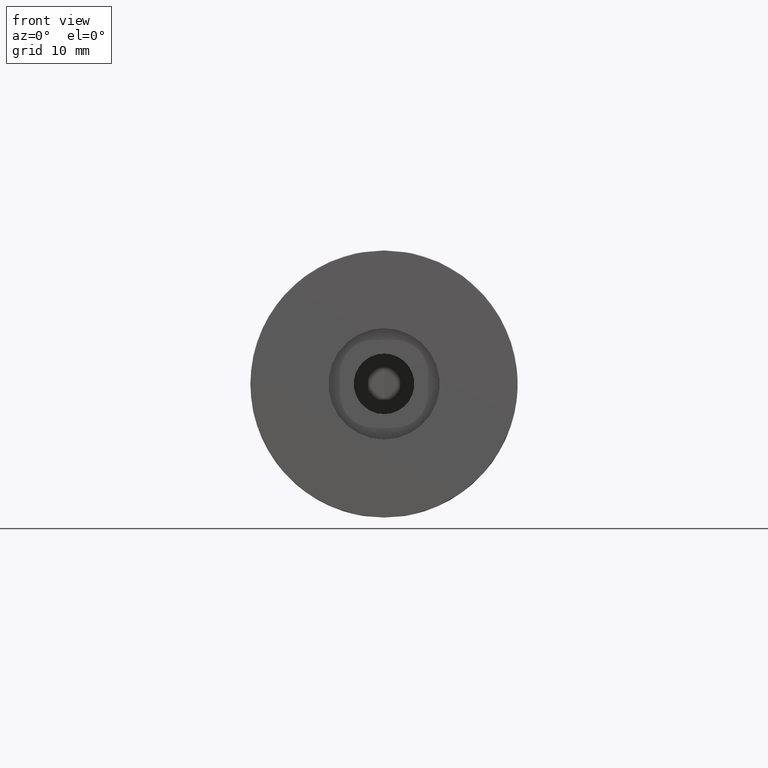
[diagram: clean part render]
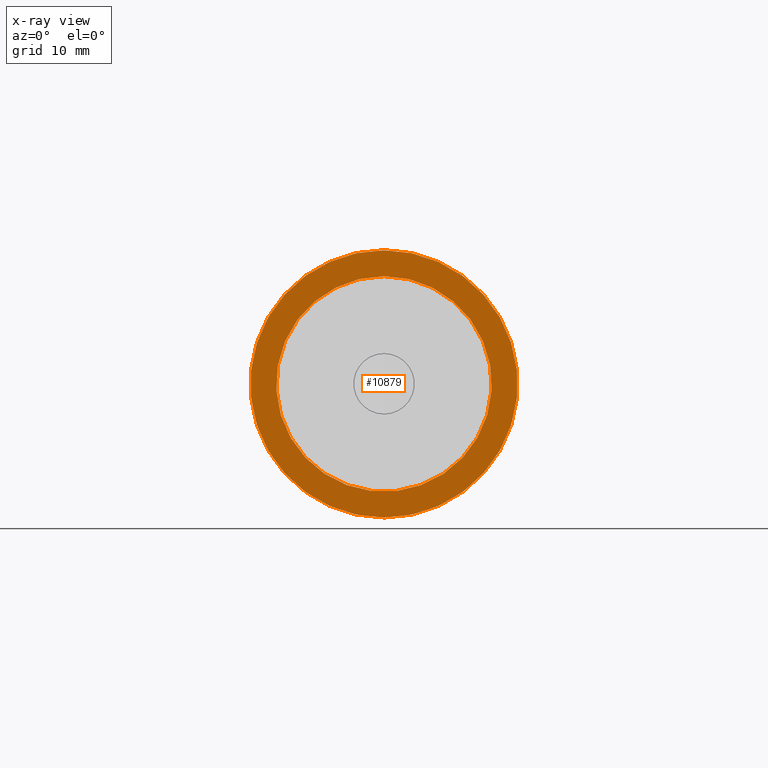
[diagram: x-ray — body ghosted, one internal face saturated and labeled with its STEP entity id]
A machine part, front view, then the same camera in x-ray: the body is ghosted and one INTERNAL B-rep face — a face not visible from any outside direction — is saturated and labeled: STEP entity #10879.
In plain terms, the highlighted planar face has unit normal (0, -1, 0).
Its self-contained STEP definition (entity closure, byte-faithful):
#1686 = CARTESIAN_POINT ( 'NONE',  ( 0.0000000000000000000, 12.69000000000000000, 0.0000000000000000000 ) ) ;
#1695 = DIRECTION ( 'NONE',  ( 0.0000000000000000000, 0.0000000000000000000, 1.000000000000000000 ) ) ;
#2866 = PLANE ( 'NONE',  #11397 ) ;
#2970 = AXIS2_PLACEMENT_3D ( 'NONE', #10230, #4692, #6270 ) ;
#3784 = AXIS2_PLACEMENT_3D ( 'NONE', #4293, #16293, #1695 ) ;
#4150 = FACE_OUTER_BOUND ( 'NONE', #5580, .T. ) ;
#4222 = ORIENTED_EDGE ( 'NONE', *, *, #4255, .F. ) ;
#4255 = EDGE_CURVE ( 'NONE', #15263, #15263, #5160, .T. ) ;
#4293 = CARTESIAN_POINT ( 'NONE',  ( 0.0000000000000000000, 12.69000000000000000, 0.0000000000000000000 ) ) ;
#4692 = DIRECTION ( 'NONE',  ( 0.0000000000000000000, 1.000000000000000000, 0.0000000000000000000 ) ) ;
#5160 = CIRCLE ( 'NONE', #2970, 12.10000000000000000 ) ;
#5580 = EDGE_LOOP ( 'NONE', ( #8986 ) ) ;
#6270 = DIRECTION ( 'NONE',  ( 0.0000000000000000000, 0.0000000000000000000, 1.000000000000000000 ) ) ;
#6274 = EDGE_CURVE ( 'NONE', #8397, #8397, #10960, .T. ) ;
#7706 = FACE_BOUND ( 'NONE', #9056, .T. ) ;
#8397 = VERTEX_POINT ( 'NONE', #10551 ) ;
#8986 = ORIENTED_EDGE ( 'NONE', *, *, #6274, .T. ) ;
#9056 = EDGE_LOOP ( 'NONE', ( #4222 ) ) ;
#9451 = CARTESIAN_POINT ( 'NONE',  ( 0.0000000000000000000, 12.69000000000000000, 12.10000000000000000 ) ) ;
#10230 = CARTESIAN_POINT ( 'NONE',  ( 0.0000000000000000000, 12.69000000000000000, 0.0000000000000000000 ) ) ;
#10551 = CARTESIAN_POINT ( 'NONE',  ( 0.0000000000000000000, 12.69000000000000000, 15.00000000000000000 ) ) ;
#10879 = ADVANCED_FACE ( 'NONE', ( #4150, #7706 ), #2866, .T. ) ;
#10960 = CIRCLE ( 'NONE', #3784, 15.00000000000000000 ) ;
#11397 = AXIS2_PLACEMENT_3D ( 'NONE', #1686, #13601, #14968 ) ;
#13601 = DIRECTION ( 'NONE',  ( 0.0000000000000000000, 1.000000000000000000, 0.0000000000000000000 ) ) ;
#14968 = DIRECTION ( 'NONE',  ( 0.0000000000000000000, -0.0000000000000000000, 1.000000000000000000 ) ) ;
#15263 = VERTEX_POINT ( 'NONE', #9451 ) ;
#16293 = DIRECTION ( 'NONE',  ( 0.0000000000000000000, 1.000000000000000000, 0.0000000000000000000 ) ) ;